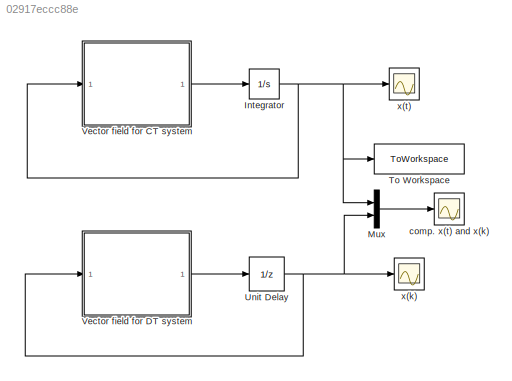
MODEL slx_02917eccc88e
KIND model
CONFIG AbsTol = auto
CONFIG EnableMultiTasking = off
CONFIG FixedStep = 1e-3
CONFIG MaxStep = auto
CONFIG MinStep = auto
CONFIG RelTol = 1e-3
CONFIG SampleTimeConstraint = Unconstrained
CONFIG SolverName = ode3
CONFIG StartTime = 0.0
CONFIG StopTime = 100
BLOCK [Integrator] Integrator
  InitialCondition = [0;1;0]
BLOCK [Mux] Mux
  DisplayOption = bar
  Inputs = 2
BLOCK [ToWorkspace] To Workspace
  FixptAsFi = on
  MaxDataPoints = inf
  SampleTime = -1
  VariableName = x
BLOCK [UnitDelay] Unit Delay
  HasFrameUpgradeWarning = on
  InitialCondition = [0;1;0]
  SampleTime = 1e-3
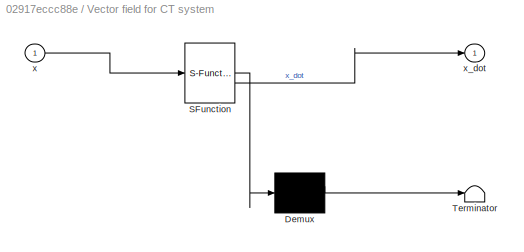
BLOCK [SubSystem] Vector field for CT system
  ErrorFcn = Stateflow.Translate.translate
  PermitHierarchicalResolution = ExplicitOnly
  SFBlockType = MATLAB Function
  TreatAsAtomicUnit = on
BLOCK [Demux] Vector field for CT system/ Demux 
  Outputs = 1
BLOCK [S-Function] Vector field for CT system/ SFunction 
  EnableBusSupport = on
  FunctionName = sf_sfun
  PortCounts = [1 2]
  SFcnIsStateOwnerBlock = off
  SFunctionDeploymentMode = off
  Tag = Stateflow S-Function 2
BLOCK [Terminator] Vector field for CT system/ Terminator 
BLOCK [Inport] Vector field for CT system/x
BLOCK [Outport] Vector field for CT system/x_dot
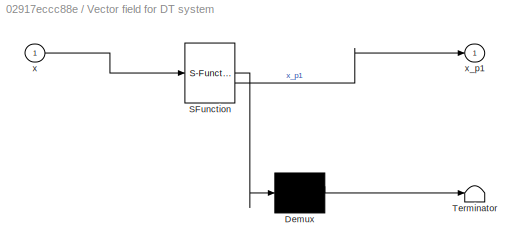
BLOCK [SubSystem] Vector field for DT system
  ErrorFcn = Stateflow.Translate.translate
  PermitHierarchicalResolution = ExplicitOnly
  SFBlockType = MATLAB Function
  TreatAsAtomicUnit = on
BLOCK [Demux] Vector field for DT system/ Demux 
  Outputs = 1
BLOCK [S-Function] Vector field for DT system/ SFunction 
  EnableBusSupport = on
  FunctionName = sf_sfun
  PortCounts = [1 2]
  SFcnIsStateOwnerBlock = off
  SFunctionDeploymentMode = off
  Tag = Stateflow S-Function 1
BLOCK [Terminator] Vector field for DT system/ Terminator 
BLOCK [Inport] Vector field for DT system/x
BLOCK [Outport] Vector field for DT system/x_p1
BLOCK [Scope] comp. x(t) and x(k)
  Floating = off
  NumInputPorts = 1
  ScopeSpecificationString = Simulink.scopes.TimeScopeBlockCfg('CurrentConfiguration', extmgr.ConfigurationSet(extmgr.Configuration('Core','General UI',true),extmgr.Configuration('Core','Source UI',true),extmgr.Configuration('Sources','WiredSimulink',true,'DataLoggingVariableName','ScopeData1'),extmgr.Configuration('Visuals','Time Domain',true,'SerializedDisplays',{struct('MinYLimReal','-29.05769','MaxYLimReal','49.41518','YL...<+1455ch>
BLOCK [Scope] x(k)
  Floating = off
  NumInputPorts = 1
  ScopeSpecificationString = Simulink.scopes.TimeScopeBlockCfg('CurrentConfiguration', extmgr.ConfigurationSet(extmgr.Configuration('Core','General UI',true),extmgr.Configuration('Core','Source UI',true),extmgr.Configuration('Sources','WiredSimulink',true,'DataLoggingVariableName','ScopeData1'),extmgr.Configuration('Visuals','Time Domain',true,'SerializedDisplays',{struct('MinYLimReal','-32.62637','MaxYLimReal','57.93669','YL...<+1436ch>
BLOCK [Scope] x(t)
  Floating = off
  NumInputPorts = 1
  ScopeSpecificationString = Simulink.scopes.TimeScopeBlockCfg('CurrentConfiguration', extmgr.ConfigurationSet(extmgr.Configuration('Core','General UI',true),extmgr.Configuration('Core','Source UI',true),extmgr.Configuration('Sources','WiredSimulink',true),extmgr.Configuration('Visuals','Time Domain',true,'SerializedDisplays',{struct('MinYLimReal','-29.05769','MaxYLimReal','49.41518','YLabelReal','','MinYLimMag','0.00000','Ma...<+1416ch>
NET Integrator:1 -> Mux:1, To Workspace:1, Vector field for CT system:1, x(t):1
LINE Mux:1 -> comp. x(t) and x(k):1
NET Unit Delay:1 -> Mux:2, Vector field for DT system:1, x(k):1
LINE Vector field for CT system:1 -> Integrator:1
LINE Vector field for DT system:1 -> Unit Delay:1
note: NET lines group one-source signal fan-out (src -> all destinations, sorted); 1:1 wires keep LINE
CHART Vector field for CT system states=1 transitions=1
  STATE_LABEL 'eML_blk_kernel()'
  STATE_LABEL 'SCRIPT:\nfunction x_dot = f(x) % nonlinear mapping\n\nrho = 28;\nsigma = 10;\nbeta = 8/3;\n\nx_dot = [ sigma*(x(2) - x(1))  ;\n          x(1)*(rho-x(3))-x(2) ; \n          x(1)*x(2)-beta*x(3) ];\n'
CHART Vector field for DT system states=1 transitions=1
  STATE_LABEL 'eML_blk_kernel()'
  STATE_LABEL 'SCRIPT:\nfunction x_p1 = fp(x) % nonlinear mapping f "prime" (discrete-time)\n% x_p1 means x(k+1)\nrho = 28;\nsigma = 10;\nbeta = 8/3;\n\nTs = 1e-3; % sampling time\n\nx_p1 = x + Ts*[ sigma*(x(2) - x(1))  ;\n                x(1)*(rho-x(3))-x(2) ; \n                x(1)*x(2)-beta*x(3) ];\n'
CHART  states=0 transitions=0
CHART  states=0 transitions=0
